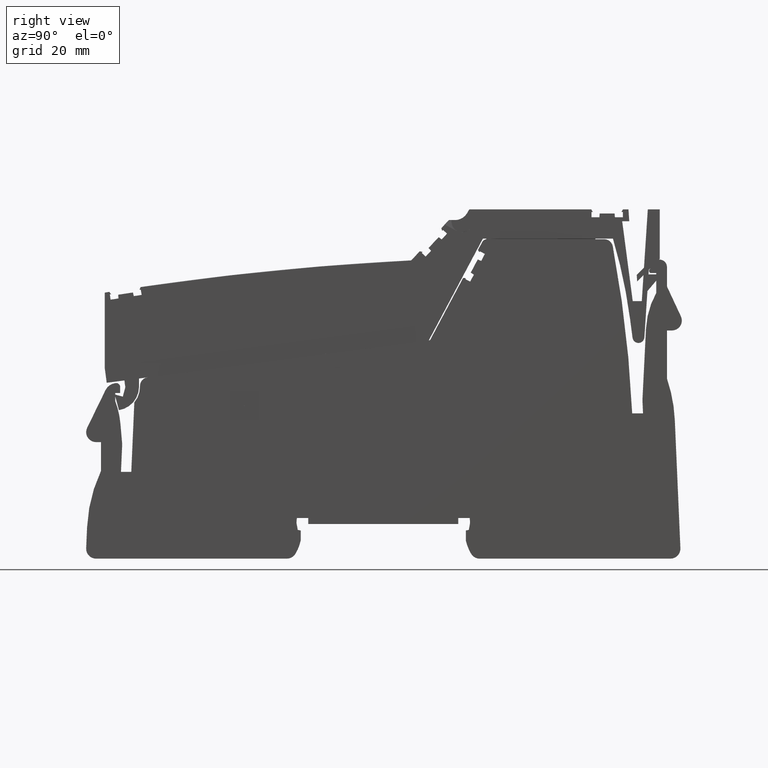
[diagram: clean part render]
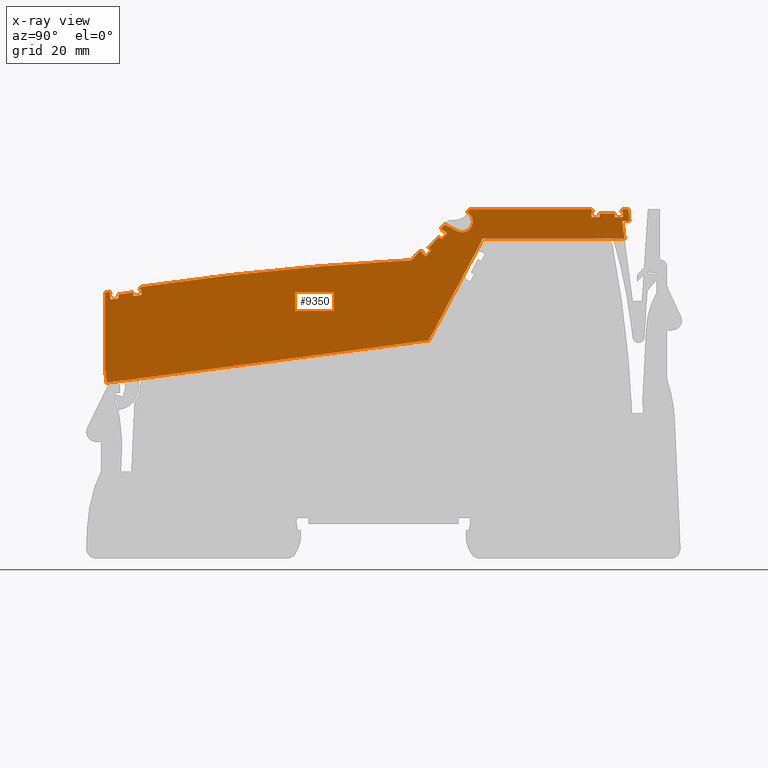
[diagram: x-ray — body ghosted, one internal face saturated and labeled with its STEP entity id]
A machine part, right view, then the same camera in x-ray: the body is ghosted and one INTERNAL B-rep face — a face not visible from any outside direction — is saturated and labeled: STEP entity #9350.
In plain terms, the highlighted planar face has unit normal (1, 0, 0).
Its self-contained STEP definition (entity closure, byte-faithful):
#5250=CARTESIAN_POINT('',(82.6815349965882,79.1094320933787,-35.425));
#5260=DIRECTION('',(0.,-0.,1.));
#5270=DIRECTION('',(0.99144486137381,0.130526192220052,0.));
#5280=AXIS2_PLACEMENT_3D('',#5250,#5260,#5270);
#5290=PLANE('',#5280);
#5300=CARTESIAN_POINT('',(1.4210854715202E-14,123.952271663143,-35.425))
;
#5310=DIRECTION('',(0.887010833178214,-0.461748613235049,0.));
#5320=VECTOR('',#5310,1.);
#5330=LINE('',#5300,#5320);
#5340=CARTESIAN_POINT('',(81.7124060542132,81.4154854500132,-35.425));
#5350=VERTEX_POINT('',#5340);
#5360=CARTESIAN_POINT('',(84.2556033003072,80.0915807606427,-35.425));
#5370=VERTEX_POINT('',#5360);
#5380=EDGE_CURVE('',#5350,#5370,#5330,.T.);
#5390=ORIENTED_EDGE('',*,*,#5380,.F.);
#5400=CARTESIAN_POINT('',(85.2483628187626,81.9986540519759,-35.425));
#5410=DIRECTION('',(-8.85927774418128E-33,0.,1.));
#5420=DIRECTION('',(0.99144486137381,0.130526192220052,
8.7834853949519E-33));
#5430=AXIS2_PLACEMENT_3D('',#5400,#5410,#5420);
#5440=CIRCLE('',#5430,2.15000000000011);
#5450=CARTESIAN_POINT('',(86.323362818763,83.8606086701124,-35.425));
#5460=VERTEX_POINT('',#5450);
#5470=EDGE_CURVE('',#5370,#5460,#5440,.T.);
#5480=ORIENTED_EDGE('',*,*,#5470,.F.);
#5490=CARTESIAN_POINT('',(37.9064178286642,-1.4210854715202E-14,-35.425)
);
#5500=DIRECTION('',(-0.500000000000028,-0.866025403784423,0.));
#5510=VECTOR('',#5500,1.);
#5520=LINE('',#5490,#5510);
#5530=CARTESIAN_POINT('',(86.6847904689085,84.4866197234245,-35.425));
#5540=VERTEX_POINT('',#5530);
#5550=EDGE_CURVE('',#5540,#5460,#5520,.T.);
#5560=ORIENTED_EDGE('',*,*,#5550,.T.);
#5570=CARTESIAN_POINT('',(1.4210854715202E-14,84.4866197234245,-35.425))
;
#5580=DIRECTION('',(-1.,0.,0.));
#5590=VECTOR('',#5580,1.);
#5600=LINE('',#5570,#5590);
#5610=CARTESIAN_POINT('',(111.280097074188,84.4866197234245,-35.425));
#5620=VERTEX_POINT('',#5610);
#5630=EDGE_CURVE('',#5620,#5540,#5600,.T.);
#5640=ORIENTED_EDGE('',*,*,#5630,.T.);
#5650=CARTESIAN_POINT('',(117.476804588516,73.7536074689866,-35.425));
#5660=DIRECTION('',(0.500000000000819,-0.866025403783966,
3.34767537788399E-17));
#5670=VECTOR('',#5660,1.);
#5680=LINE('',#5650,#5670);
#5690=CARTESIAN_POINT('',(111.586092716858,83.9566197234263,-35.425));
#5700=VERTEX_POINT('',#5690);
#5710=EDGE_CURVE('',#5620,#5700,#5680,.T.);
#5720=ORIENTED_EDGE('',*,*,#5710,.F.);
#5730=CARTESIAN_POINT('',(70.5167661636283,83.9566197232154,-35.425));
#5740=DIRECTION('',(-1.,-5.1373627574236E-12,-1.14423563262215E-17));
#5750=VECTOR('',#5740,1.);
#5760=LINE('',#5730,#5750);
#5770=CARTESIAN_POINT('',(111.313785095723,83.956619723425,-35.425));
#5780=VERTEX_POINT('',#5770);
#5790=EDGE_CURVE('',#5700,#5780,#5760,.T.);
#5800=ORIENTED_EDGE('',*,*,#5790,.F.);
#5810=CARTESIAN_POINT('',(111.313785095715,-1.4210854715202E-14,-35.425)
);
#5820=DIRECTION('',(-9.34252675222069E-14,-1.,0.));
#5830=VECTOR('',#5820,1.);
#5840=LINE('',#5810,#5830);
#5850=CARTESIAN_POINT('',(111.313785095723,82.8866197234248,-35.425));
#5860=VERTEX_POINT('',#5850);
#5870=EDGE_CURVE('',#5780,#5860,#5840,.T.);
#5880=ORIENTED_EDGE('',*,*,#5870,.F.);
#5890=CARTESIAN_POINT('',(1.4210854715202E-14,82.8866197234115,-35.425))
;
#5900=DIRECTION('',(1.,1.19154686117895E-13,0.));
#5910=VECTOR('',#5900,1.);
#5920=LINE('',#5890,#5910);
#5930=CARTESIAN_POINT('',(112.910668598078,82.886619723425,-35.425));
#5940=VERTEX_POINT('',#5930);
#5950=EDGE_CURVE('',#5860,#5940,#5920,.T.);
#5960=ORIENTED_EDGE('',*,*,#5950,.F.);
#5970=CARTESIAN_POINT('',(105.659029014286,-1.4210854715202E-14,-35.425)
);
#5980=DIRECTION('',(0.087155742747754,0.996194698091737,0.));
#5990=VECTOR('',#5980,1.);
#6000=LINE('',#5970,#5990);
#6010=CARTESIAN_POINT('',(112.976285095723,83.6366197234249,-35.425));
#6020=VERTEX_POINT('',#6010);
#6030=EDGE_CURVE('',#5940,#6020,#6000,.T.);
#6040=ORIENTED_EDGE('',*,*,#6030,.F.);
#6050=CARTESIAN_POINT('',(70.5588949628286,83.6366197234257,-35.425));
#6060=DIRECTION('',(1.,-1.86795023893183E-14,1.14423563262215E-17));
#6070=VECTOR('',#6060,1.);
#6080=LINE('',#6050,#6070);
#6090=CARTESIAN_POINT('',(115.976285095723,83.6366197234249,-35.425));
#6100=VERTEX_POINT('',#6090);
#6110=EDGE_CURVE('',#6020,#6100,#6080,.T.);
#6120=ORIENTED_EDGE('',*,*,#6110,.F.);
#6130=CARTESIAN_POINT('',(123.293541177125,-1.4210854715202E-14,-35.425)
);
#6140=DIRECTION('',(0.0871557427473462,-0.996194698091773,0.));
#6150=VECTOR('',#6140,1.);
#6160=LINE('',#6130,#6150);
#6170=CARTESIAN_POINT('',(116.041901593367,82.8866197234247,-35.425));
#6180=VERTEX_POINT('',#6170);
#6190=EDGE_CURVE('',#6100,#6180,#6160,.T.);
#6200=ORIENTED_EDGE('',*,*,#6190,.F.);
#6210=CARTESIAN_POINT('',(1.4210854715202E-14,82.8866197234154,-35.425))
;
#6220=DIRECTION('',(1.,8.06021915877864E-14,0.));
#6230=VECTOR('',#6220,1.);
#6240=LINE('',#6210,#6230);
#6250=CARTESIAN_POINT('',(117.638785095723,82.8866197234249,-35.425));
#6260=VERTEX_POINT('',#6250);
#6270=EDGE_CURVE('',#6180,#6260,#6240,.T.);
#6280=ORIENTED_EDGE('',*,*,#6270,.F.);
#6290=CARTESIAN_POINT('',(117.638785095727,-1.4210854715202E-14,-35.425)
);
#6300=DIRECTION('',(-5.49282841433296E-14,1.,0.));
#6310=VECTOR('',#6300,1.);
#6320=LINE('',#6290,#6310);
#6330=CARTESIAN_POINT('',(117.638785095723,83.9566197234248,-35.425));
#6340=VERTEX_POINT('',#6330);
#6350=EDGE_CURVE('',#6260,#6340,#6320,.T.);
#6360=ORIENTED_EDGE('',*,*,#6350,.F.);
#6370=CARTESIAN_POINT('',(70.5167661635693,83.9566197236635,-35.425));
#6380=DIRECTION('',(-1.,5.06689135093552E-12,-1.14423563262215E-17));
#6390=VECTOR('',#6380,1.);
#6400=LINE('',#6370,#6390);
#6410=CARTESIAN_POINT('',(117.366477474588,83.9566197234262,-35.425));
#6420=VERTEX_POINT('',#6410);
#6430=EDGE_CURVE('',#6340,#6420,#6400,.T.);
#6440=ORIENTED_EDGE('',*,*,#6430,.F.);
#6450=CARTESIAN_POINT('',(110.982106139763,72.8985641971313,-35.425));
#6460=DIRECTION('',(0.500000000000253,0.866025403784292,
-2.20343974524871E-17));
#6470=VECTOR('',#6460,1.);
#6480=LINE('',#6450,#6470);
#6490=CARTESIAN_POINT('',(117.672473117258,84.4866197234246,-35.425));
#6500=VERTEX_POINT('',#6490);
#6510=EDGE_CURVE('',#6420,#6500,#6480,.T.);
#6520=ORIENTED_EDGE('',*,*,#6510,.F.);
#6530=CARTESIAN_POINT('',(70.4469903398795,84.4866197234245,-35.425));
#6540=DIRECTION('',(-1.,-3.33066907387547E-15,-1.14423563262215E-17));
#6550=VECTOR('',#6540,1.);
#6560=LINE('',#6530,#6550);
#6570=CARTESIAN_POINT('',(118.776285095723,84.4866197234246,-35.425));
#6580=VERTEX_POINT('',#6570);
#6590=EDGE_CURVE('',#6580,#6500,#6560,.T.);
#6600=ORIENTED_EDGE('',*,*,#6590,.T.);
#6610=CARTESIAN_POINT('',(119.46262829087,74.0150461191697,-35.425));
#6620=DIRECTION('',(-0.0654031292301207,0.997858923238605,
-1.07067800097519E-18));
#6630=VECTOR('',#6620,1.);
#6640=LINE('',#6610,#6630);
#6650=CARTESIAN_POINT('',(118.933589406479,82.0866197234258,-35.425));
#6660=VERTEX_POINT('',#6650);
#6670=EDGE_CURVE('',#6660,#6580,#6640,.T.);
#6680=ORIENTED_EDGE('',*,*,#6670,.T.);
#6690=CARTESIAN_POINT('',(70.7629563340898,82.0866197234204,-35.425));
#6700=DIRECTION('',(-1.,-1.11688436277291E-13,-1.14423563262215E-17));
#6710=VECTOR('',#6700,1.);
#6720=LINE('',#6690,#6710);
#6730=CARTESIAN_POINT('',(117.512908656979,82.0866197234256,-35.425));
#6740=VERTEX_POINT('',#6730);
#6750=EDGE_CURVE('',#6660,#6740,#6720,.T.);
#6760=ORIENTED_EDGE('',*,*,#6750,.F.);
#6770=CARTESIAN_POINT('',(128.319817162075,-1.4210854715202E-14,-35.425)
);
#6780=DIRECTION('',(0.130526192220052,-0.99144486137381,0.));
#6790=VECTOR('',#6780,1.);
#6800=LINE('',#6770,#6790);
#6810=CARTESIAN_POINT('',(117.973692398535,78.5866197234246,-35.425));
#6820=VERTEX_POINT('',#6810);
#6830=EDGE_CURVE('',#6740,#6820,#6800,.T.);
#6840=ORIENTED_EDGE('',*,*,#6830,.F.);
#6850=CARTESIAN_POINT('',(71.2237400756451,78.5866197234246,-35.425));
#6860=DIRECTION('',(1.,0.,1.14423563262215E-17));
#6870=VECTOR('',#6860,1.);
#6880=LINE('',#6850,#6870);
#6890=CARTESIAN_POINT('',(89.4233780495348,78.5866197234246,-35.425));
#6900=VERTEX_POINT('',#6890);
#6910=EDGE_CURVE('',#6900,#6820,#6880,.T.);
#6920=ORIENTED_EDGE('',*,*,#6910,.T.);
#6930=CARTESIAN_POINT('',(84.5486179871549,69.4185294618935,-35.425));
#6940=DIRECTION('',(0.469471562785891,0.882947592858927,
1.98252351633153E-18));
#6950=VECTOR('',#6940,1.);
#6960=LINE('',#6930,#6950);
#6970=CARTESIAN_POINT('',(78.5141517634814,58.0693491307922,-35.425));
#6980=VERTEX_POINT('',#6970);
#6990=EDGE_CURVE('',#6980,#6900,#6960,.T.);
#7000=ORIENTED_EDGE('',*,*,#6990,.T.);
#7010=CARTESIAN_POINT('',(74.0030776442306,57.4754549561902,-35.425));
#7020=DIRECTION('',(0.991444861373789,0.130526192220212,
2.03025052721141E-32));
#7030=VECTOR('',#7020,1.);
#7040=LINE('',#7010,#7030);
#7050=CARTESIAN_POINT('',(13.5745133434982,49.5198835403683,-35.425));
#7060=VERTEX_POINT('',#7050);
#7070=EDGE_CURVE('',#7060,#6980,#7040,.T.);
#7080=ORIENTED_EDGE('',*,*,#7070,.T.);
#7090=CARTESIAN_POINT('',(12.2086310606799,59.8947895075835,-35.425));
#7100=DIRECTION('',(0.130526192220052,-0.99144486137381,
-3.08148791101958E-32));
#7110=VECTOR('',#7100,1.);
#7120=LINE('',#7090,#7110);
#7130=CARTESIAN_POINT('',(13.1829347668366,52.4942181245001,-35.425));
#7140=VERTEX_POINT('',#7130);
#7150=EDGE_CURVE('',#7140,#7060,#7120,.T.);
#7160=ORIENTED_EDGE('',*,*,#7150,.T.);
#7170=CARTESIAN_POINT('',(13.1829347668366,60.0230590239077,-35.425));
#7180=DIRECTION('',(8.32667268468867E-17,-1.,-1.38777878078145E-17));
#7190=VECTOR('',#7180,1.);
#7200=LINE('',#7170,#7190);
#7210=CARTESIAN_POINT('',(13.1829347668366,67.701244428714,-35.425));
#7220=VERTEX_POINT('',#7210);
#7230=EDGE_CURVE('',#7220,#7140,#7200,.T.);
#7240=ORIENTED_EDGE('',*,*,#7230,.T.);
#7250=CARTESIAN_POINT('',(104.084452057128,-500.06799932646,-35.425));
#7260=DIRECTION('',(-8.85927774418128E-33,0.,1.));
#7270=DIRECTION('',(0.99144486137381,0.130526192220052,0.));
#7280=AXIS2_PLACEMENT_3D('',#7250,#7260,#7270);
#7290=CIRCLE('',#7280,575.);
#7300=CARTESIAN_POINT('',(14.0966316585303,67.8467761283693,-35.425));
#7310=VERTEX_POINT('',#7300);
#7320=EDGE_CURVE('',#7310,#7220,#7290,.T.);
#7330=ORIENTED_EDGE('',*,*,#7320,.T.);
#7340=CARTESIAN_POINT('',(19.676851164994,60.8779993368489,-35.425));
#7350=DIRECTION('',(0.625050010517978,-0.780584706711242,
2.1035385032723E-17));
#7360=VECTOR('',#7350,1.);
#7370=LINE('',#7340,#7360);
#7380=CARTESIAN_POINT('',(14.4727658909791,67.3770463074278,-35.425));
#7390=VERTEX_POINT('',#7380);
#7400=EDGE_CURVE('',#7310,#7390,#7370,.T.);
#7410=ORIENTED_EDGE('',*,*,#7400,.F.);
#7420=CARTESIAN_POINT('',(71.551517232091,76.0969050392932,-35.425));
#7430=DIRECTION('',(-0.988531191076977,-0.151016834385886,
3.70508301110601E-19));
#7440=VECTOR('',#7430,1.);
#7450=LINE('',#7420,#7440);
#7460=CARTESIAN_POINT('',(14.2035813139184,67.335923272505,-35.425));
#7470=VERTEX_POINT('',#7460);
#7480=EDGE_CURVE('',#7390,#7470,#7450,.T.);
#7490=ORIENTED_EDGE('',*,*,#7480,.F.);
#7500=CARTESIAN_POINT('',(24.4904170405679,-1.4210854715202E-14,-35.425)
);
#7510=DIRECTION('',(0.151016834388983,-0.988531191076503,0.));
#7520=VECTOR('',#7510,1.);
#7530=LINE('',#7500,#7520);
#7540=CARTESIAN_POINT('',(14.3651693267146,66.2781948980529,-35.425));
#7550=VERTEX_POINT('',#7540);
#7560=EDGE_CURVE('',#7470,#7550,#7530,.T.);
#7570=ORIENTED_EDGE('',*,*,#7560,.F.);
#7580=CARTESIAN_POINT('',(1.4210854715202E-14,64.0836436114932,-35.425))
;
#7590=DIRECTION('',(0.988531191076512,0.151016834388925,0.));
#7600=VECTOR('',#7590,1.);
#7610=LINE('',#7580,#7600);
#7620=CARTESIAN_POINT('',(15.9437384773085,66.5193511894665,-35.425));
#7630=VERTEX_POINT('',#7620);
#7640=EDGE_CURVE('',#7550,#7630,#7610,.T.);
#7650=ORIENTED_EDGE('',*,*,#7640,.F.);
#7660=CARTESIAN_POINT('',(20.2288651749482,-1.4210854715202E-14,-35.425)
);
#7670=DIRECTION('',(-0.0642859995531953,0.997931515817316,0.));
#7680=VECTOR('',#7670,1.);
#7690=LINE('',#7660,#7680);
#7700=CARTESIAN_POINT('',(15.8953398060877,67.2706587785318,-35.425));
#7710=VERTEX_POINT('',#7700);
#7720=EDGE_CURVE('',#7630,#7710,#7690,.T.);
#7730=ORIENTED_EDGE('',*,*,#7720,.F.);
#7740=CARTESIAN_POINT('',(71.5932945613605,75.7795747186763,-35.425));
#7750=DIRECTION('',(0.988531191076507,0.151016834388962,
-3.70508301168148E-19));
#7760=VECTOR('',#7750,1.);
#7770=LINE('',#7740,#7760);
#7780=CARTESIAN_POINT('',(18.8609333793172,67.7237092816987,-35.425));
#7790=VERTEX_POINT('',#7780);
#7800=EDGE_CURVE('',#7710,#7790,#7770,.T.);
#7810=ORIENTED_EDGE('',*,*,#7800,.F.);
#7820=CARTESIAN_POINT('',(35.352486206355,-1.4210854715202E-14,-35.425))
;
#7830=DIRECTION('',(0.236598339928087,-0.971607547080236,0.));
#7840=VECTOR('',#7830,1.);
#7850=LINE('',#7820,#7840);
#7860=CARTESIAN_POINT('',(19.0390599596794,66.9922200841493,-35.425));
#7870=VERTEX_POINT('',#7860);
#7880=EDGE_CURVE('',#7790,#7870,#7850,.T.);
#7890=ORIENTED_EDGE('',*,*,#7880,.F.);
#7900=CARTESIAN_POINT('',(1.4210854715202E-14,64.0836436114918,-35.425))
;
#7910=DIRECTION('',(0.9885311910765,0.151016834389004,0.));
#7920=VECTOR('',#7910,1.);
#7930=LINE('',#7900,#7920);
#7940=CARTESIAN_POINT('',(20.6176291102735,67.2333763755631,-35.425));
#7950=VERTEX_POINT('',#7940);
#7960=EDGE_CURVE('',#7870,#7950,#7930,.T.);
#7970=ORIENTED_EDGE('',*,*,#7960,.F.);
#7980=CARTESIAN_POINT('',(30.8887988590628,-1.4210854715202E-14,-35.425)
);
#7990=DIRECTION('',(-0.15101683438897,0.988531191076505,0.));
#8000=VECTOR('',#7990,1.);
#8010=LINE('',#7980,#8000);
#8020=CARTESIAN_POINT('',(20.4560410974773,68.2911047500148,-35.425));
#8030=VERTEX_POINT('',#8020);
#8040=EDGE_CURVE('',#7950,#8030,#8010,.T.);
#8050=ORIENTED_EDGE('',*,*,#8040,.F.);
#8060=CARTESIAN_POINT('',(71.5515172321112,76.0969050391398,-35.425));
#8070=DIRECTION('',(-0.988531191077486,-0.151016834382553,
3.70508301048238E-19));
#8080=VECTOR('',#8070,1.);
#8090=LINE('',#8060,#8080);
#8100=CARTESIAN_POINT('',(20.186856520418,68.2499817150929,-35.425));
#8110=VERTEX_POINT('',#8100);
#8120=EDGE_CURVE('',#8030,#8110,#8090,.T.);
#8130=ORIENTED_EDGE('',*,*,#8120,.F.);
#8140=CARTESIAN_POINT('',(17.182413559422,60.5496003959994,-35.425));
#8150=DIRECTION('',(0.363481180558057,0.931601541100122,
-1.0997552478088E-17));
#8160=VECTOR('',#8150,1.);
#8170=LINE('',#8140,#8160);
#8180=CARTESIAN_POINT('',(20.4055873620427,68.8105884260946,-35.425));
#8190=VERTEX_POINT('',#8180);
#8200=EDGE_CURVE('',#8110,#8190,#8170,.T.);
#8210=ORIENTED_EDGE('',*,*,#8200,.F.);
#8220=CARTESIAN_POINT('',(104.084452057128,-500.06799932646,-35.425));
#8230=DIRECTION('',(-8.85927774418128E-33,0.,1.));
#8240=DIRECTION('',(0.99144486137381,0.130526192220052,0.));
#8250=AXIS2_PLACEMENT_3D('',#8220,#8230,#8240);
#8260=CIRCLE('',#8250,575.);
#8270=CARTESIAN_POINT('',(74.9791020504756,74.1949009213182,-35.425));
#8280=VERTEX_POINT('',#8270);
#8290=EDGE_CURVE('',#8280,#8190,#8260,.T.);
#8300=ORIENTED_EDGE('',*,*,#8290,.T.);
#8310=CARTESIAN_POINT('',(72.1949828292245,71.2092985834693,-35.425));
#8320=DIRECTION('',(-0.681998360062363,-0.731353701619297,
-2.53969612628868E-19));
#8330=VECTOR('',#8320,1.);
#8340=LINE('',#8310,#8330);
#8350=CARTESIAN_POINT('',(76.688235497364,76.0277221510188,-35.425));
#8360=VERTEX_POINT('',#8350);
#8370=EDGE_CURVE('',#8360,#8280,#8340,.T.);
#8380=ORIENTED_EDGE('',*,*,#8370,.T.);
#8390=CARTESIAN_POINT('',(71.3998893619735,77.248633057342,-35.425));
#8400=DIRECTION('',(0.974370064785244,-0.224951054343824,
3.6059170670998E-17));
#8410=VECTOR('',#8400,1.);
#8420=LINE('',#8390,#8410);
#8430=CARTESIAN_POINT('',(77.2845414857078,75.8900540661325,-35.425));
#8440=VERTEX_POINT('',#8430);
#8450=EDGE_CURVE('',#8360,#8440,#8420,.T.);
#8460=ORIENTED_EDGE('',*,*,#8450,.F.);
#8470=CARTESIAN_POINT('',(72.2846363775469,70.5283122750789,-35.425));
#8480=DIRECTION('',(-0.681998360064581,-0.731353701617229,
-2.53969612900505E-19));
#8490=VECTOR('',#8480,1.);
#8500=LINE('',#8470,#8490);
#8510=CARTESIAN_POINT('',(77.0988281346601,75.6909008794362,-35.425));
#8520=VERTEX_POINT('',#8510);
#8530=EDGE_CURVE('',#8440,#8520,#8500,.T.);
#8540=ORIENTED_EDGE('',*,*,#8530,.F.);
#8550=CARTESIAN_POINT('',(1.4210854715202E-14,147.586721238526,-35.425))
;
#8560=DIRECTION('',(0.731353701619242,-0.681998360062422,0.));
#8570=VECTOR('',#8560,1.);
#8580=LINE('',#8550,#8570);
#8590=CARTESIAN_POINT('',(77.8813765953927,74.9611626341694,-35.425));
#8600=VERTEX_POINT('',#8590);
#8610=EDGE_CURVE('',#8520,#8600,#8580,.T.);
#8620=ORIENTED_EDGE('',*,*,#8610,.F.);
#8630=CARTESIAN_POINT('',(7.97896156459622,-1.4210854715202E-14,-35.425)
);
#8640=DIRECTION('',(0.681998360062575,0.731353701619099,0.));
#8650=VECTOR('',#8640,1.);
#8660=LINE('',#8630,#8650);
#8670=CARTESIAN_POINT('',(78.9704485252099,76.1290492946714,-35.425));
#8680=VERTEX_POINT('',#8670);
#8690=EDGE_CURVE('',#8600,#8680,#8660,.T.);
#8700=ORIENTED_EDGE('',*,*,#8690,.F.);
#8710=CARTESIAN_POINT('',(147.517352398626,-1.4210854715202E-14,-35.425)
);
#8720=DIRECTION('',(-0.669130606358558,0.743144825477665,0.));
#8730=VECTOR('',#8720,1.);
#8740=LINE('',#8710,#8730);
#8750=CARTESIAN_POINT('',(78.4666835927825,76.6885369331583,-35.425));
#8760=VERTEX_POINT('',#8750);
#8770=EDGE_CURVE('',#8680,#8760,#8740,.T.);
#8780=ORIENTED_EDGE('',*,*,#8770,.F.);
#8790=CARTESIAN_POINT('',(72.338766821823,70.1171507303451,-35.425));
#8800=DIRECTION('',(0.681998360062455,0.731353701619211,
2.53969612640089E-19));
#8810=VECTOR('',#8800,1.);
#8820=LINE('',#8790,#8810);
#8830=CARTESIAN_POINT('',(80.5126786729696,78.8825980380156,-35.425));
#8840=VERTEX_POINT('',#8830);
#8850=EDGE_CURVE('',#8760,#8840,#8820,.T.);
#8860=ORIENTED_EDGE('',*,*,#8850,.F.);
#8870=CARTESIAN_POINT('',(1.4210854715202E-14,141.785996636754,-35.425))
;
#8880=DIRECTION('',(0.788010753606755,-0.615661475325616,0.));
#8890=VECTOR('',#8880,1.);
#8900=LINE('',#8870,#8890);
#8910=CARTESIAN_POINT('',(81.1059442929708,78.4190881364081,-35.425));
#8920=VERTEX_POINT('',#8910);
#8930=EDGE_CURVE('',#8840,#8920,#8900,.T.);
#8940=ORIENTED_EDGE('',*,*,#8930,.F.);
#8950=CARTESIAN_POINT('',(7.9789615646208,-1.4210854715202E-14,-35.425))
;
#8960=DIRECTION('',(0.681998360062451,0.731353701619215,0.));
#8970=VECTOR('',#8960,1.);
#8980=LINE('',#8950,#8970);
#8990=CARTESIAN_POINT('',(82.1950162227881,79.5869747969106,-35.425));
#9000=VERTEX_POINT('',#8990);
#9010=EDGE_CURVE('',#8920,#9000,#8980,.T.);
#9020=ORIENTED_EDGE('',*,*,#9010,.F.);
#9030=CARTESIAN_POINT('',(1.4210854715202E-14,156.235067429974,-35.425))
;
#9040=DIRECTION('',(-0.731353701619242,0.681998360062422,0.));
#9050=VECTOR('',#9040,1.);
#9060=LINE('',#9030,#9050);
#9070=CARTESIAN_POINT('',(81.4124677620555,80.3167130421774,-35.425));
#9080=VERTEX_POINT('',#9070);
#9090=EDGE_CURVE('',#9000,#9080,#9060,.T.);
#9100=ORIENTED_EDGE('',*,*,#9090,.F.);
#9110=CARTESIAN_POINT('',(72.2846363775451,70.5283122750928,-35.425));
#9120=DIRECTION('',(-0.681998360064199,-0.731353701617584,
-2.53969612853764E-19));
#9130=VECTOR('',#9120,1.);
#9140=LINE('',#9110,#9130);
#9150=CARTESIAN_POINT('',(81.2267544110084,80.1175598554815,-35.425));
#9160=VERTEX_POINT('',#9150);
#9170=EDGE_CURVE('',#9080,#9160,#9140,.T.);
#9180=ORIENTED_EDGE('',*,*,#9170,.F.);
#9190=CARTESIAN_POINT('',(84.4997434735127,69.4120950101042,-35.425));
#9200=DIRECTION('',(-0.29237170472236,0.956304755963151,
5.82816236513809E-18));
#9210=VECTOR('',#9200,1.);
#9220=LINE('',#9190,#9210);
#9230=CARTESIAN_POINT('',(81.0478254756385,80.7028100322593,-35.425));
#9240=VERTEX_POINT('',#9230);
#9250=EDGE_CURVE('',#9160,#9240,#9220,.T.);
#9260=ORIENTED_EDGE('',*,*,#9250,.F.);
#9270=CARTESIAN_POINT('',(5.79123762688281,-1.4210854715202E-14,-35.425)
);
#9280=DIRECTION('',(0.681998360062363,0.731353701619297,0.));
#9290=VECTOR('',#9280,1.);
#9300=LINE('',#9270,#9290);
#9310=EDGE_CURVE('',#9240,#5350,#9300,.T.);
#9320=ORIENTED_EDGE('',*,*,#9310,.F.);
#9330=EDGE_LOOP('',(#9320,#9260,#9180,#9100,#9020,#8940,#8860,#8780,
#8700,#8620,#8540,#8460,#8380,#8300,#8210,#8130,#8050,#7970,#7890,#7810,
#7730,#7650,#7570,#7490,#7410,#7330,#7240,#7160,#7080,#7000,#6920,#6840,
#6760,#6680,#6600,#6520,#6440,#6360,#6280,#6200,#6120,#6040,#5960,#5880,
#5800,#5720,#5640,#5560,#5480,#5390));
#9340=FACE_OUTER_BOUND('',#9330,.T.);
#9350=ADVANCED_FACE('',(#9340),#5290,.T.);